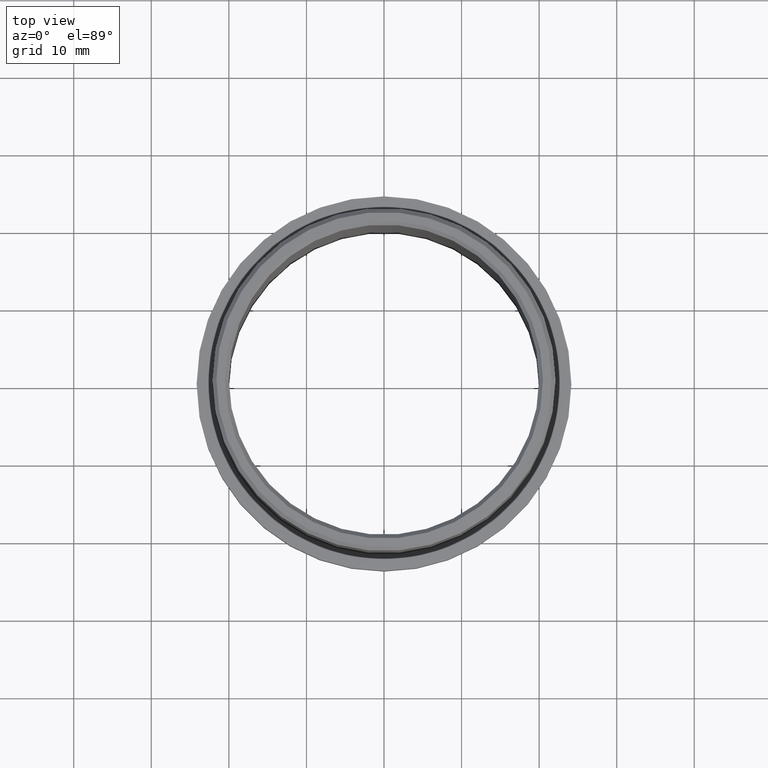
[diagram: clean part render]
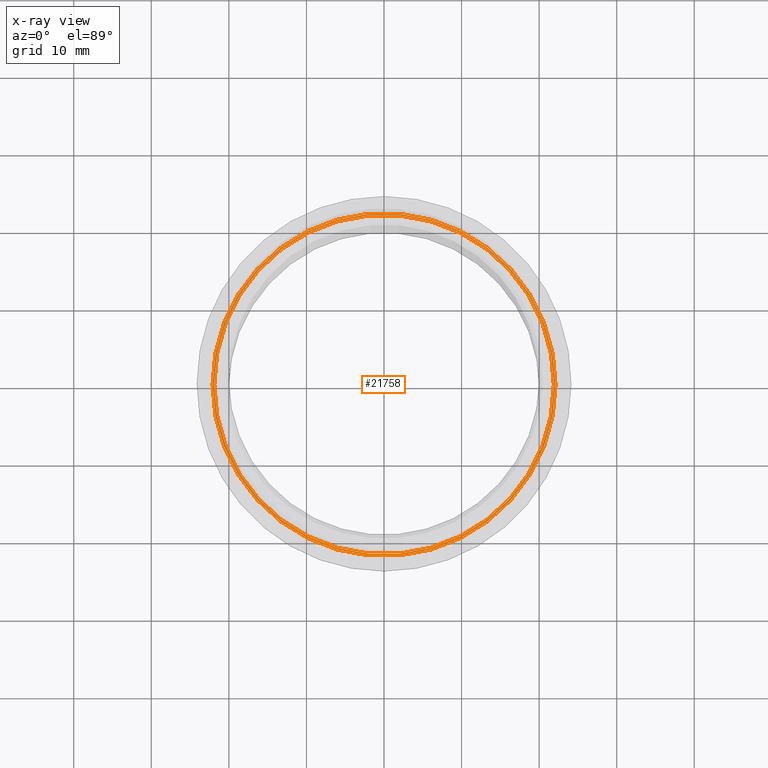
[diagram: x-ray — body ghosted, one internal face saturated and labeled with its STEP entity id]
A machine part, top view, then the same camera in x-ray: the body is ghosted and one INTERNAL B-rep face — a face not visible from any outside direction — is saturated and labeled: STEP entity #21758.
In plain terms, the highlighted planar face has unit normal (0, 0, -1).
Its self-contained STEP definition (entity closure, byte-faithful):
#1692 = EDGE_CURVE ( 'NONE', #3963, #15358, #6382, .T. ) ;
#2360 = CARTESIAN_POINT ( 'NONE',  ( 0.0000000000000000000, 0.0000000000000000000, -5.500000000000000000 ) ) ;
#2755 = CARTESIAN_POINT ( 'NONE',  ( -22.10000000000000100, 0.0000000000000000000, -5.500000000000000000 ) ) ;
#3266 = ORIENTED_EDGE ( 'NONE', *, *, #1692, .T. ) ;
#3963 = VERTEX_POINT ( 'NONE', #2755 ) ;
#5731 = CIRCLE ( 'NONE', #10152, 22.10000000000000100 ) ;
#5913 = DIRECTION ( 'NONE',  ( 0.0000000000000000000, 0.0000000000000000000, -1.000000000000000000 ) ) ;
#6000 = CIRCLE ( 'NONE', #17320, 21.89999999999999900 ) ;
#6382 = CIRCLE ( 'NONE', #13391, 22.10000000000000100 ) ;
#6507 = EDGE_CURVE ( 'NONE', #17286, #13901, #6000, .T. ) ;
#6717 = DIRECTION ( 'NONE',  ( 1.000000000000000000, 0.0000000000000000000, 0.0000000000000000000 ) ) ;
#6906 = AXIS2_PLACEMENT_3D ( 'NONE', #14603, #5913, #16212 ) ;
#6938 = EDGE_CURVE ( 'NONE', #15358, #3963, #5731, .T. ) ;
#8317 = CARTESIAN_POINT ( 'NONE',  ( 22.10000000000000100, -2.706469426115651000E-015, -5.500000000000000000 ) ) ;
#9525 = CARTESIAN_POINT ( 'NONE',  ( 0.0000000000000000000, 0.0000000000000000000, -5.500000000000000000 ) ) ;
#9604 = DIRECTION ( 'NONE',  ( 1.000000000000000000, 0.0000000000000000000, 0.0000000000000000000 ) ) ;
#10152 = AXIS2_PLACEMENT_3D ( 'NONE', #9525, #11084, #9604 ) ;
#10652 = EDGE_CURVE ( 'NONE', #13901, #17286, #12255, .T. ) ;
#10784 = FACE_BOUND ( 'NONE', #11181, .T. ) ;
#10790 = DIRECTION ( 'NONE',  ( 1.000000000000000000, 0.0000000000000000000, 0.0000000000000000000 ) ) ;
#11084 = DIRECTION ( 'NONE',  ( -0.0000000000000000000, -0.0000000000000000000, 1.000000000000000000 ) ) ;
#11181 = EDGE_LOOP ( 'NONE', ( #15506, #13782 ) ) ;
#11237 = PLANE ( 'NONE',  #6906 ) ;
#11608 = AXIS2_PLACEMENT_3D ( 'NONE', #15405, #13563, #6717 ) ;
#12003 = DIRECTION ( 'NONE',  ( 1.000000000000000000, 0.0000000000000000000, 0.0000000000000000000 ) ) ;
#12255 = CIRCLE ( 'NONE', #11608, 21.89999999999999900 ) ;
#13391 = AXIS2_PLACEMENT_3D ( 'NONE', #2360, #15572, #10790 ) ;
#13563 = DIRECTION ( 'NONE',  ( -0.0000000000000000000, -0.0000000000000000000, 1.000000000000000000 ) ) ;
#13782 = ORIENTED_EDGE ( 'NONE', *, *, #10652, .F. ) ;
#13901 = VERTEX_POINT ( 'NONE', #16816 ) ;
#14468 = FACE_OUTER_BOUND ( 'NONE', #18732, .T. ) ;
#14603 = CARTESIAN_POINT ( 'NONE',  ( 0.0000000000000000000, 0.0000000000000000000, -5.500000000000000000 ) ) ;
#15358 = VERTEX_POINT ( 'NONE', #8317 ) ;
#15405 = CARTESIAN_POINT ( 'NONE',  ( 0.0000000000000000000, 0.0000000000000000000, -5.500000000000000000 ) ) ;
#15506 = ORIENTED_EDGE ( 'NONE', *, *, #6507, .F. ) ;
#15572 = DIRECTION ( 'NONE',  ( -0.0000000000000000000, -0.0000000000000000000, 1.000000000000000000 ) ) ;
#15702 = ORIENTED_EDGE ( 'NONE', *, *, #6938, .T. ) ;
#16212 = DIRECTION ( 'NONE',  ( 1.000000000000000000, 0.0000000000000000000, 0.0000000000000000000 ) ) ;
#16816 = CARTESIAN_POINT ( 'NONE',  ( 21.89999999999999900, -2.681976490132703500E-015, -5.500000000000000000 ) ) ;
#17067 = DIRECTION ( 'NONE',  ( -0.0000000000000000000, -0.0000000000000000000, 1.000000000000000000 ) ) ;
#17286 = VERTEX_POINT ( 'NONE', #18277 ) ;
#17320 = AXIS2_PLACEMENT_3D ( 'NONE', #20518, #17067, #12003 ) ;
#18277 = CARTESIAN_POINT ( 'NONE',  ( -21.89999999999999900, 0.0000000000000000000, -5.500000000000000000 ) ) ;
#18732 = EDGE_LOOP ( 'NONE', ( #3266, #15702 ) ) ;
#20518 = CARTESIAN_POINT ( 'NONE',  ( 0.0000000000000000000, 0.0000000000000000000, -5.500000000000000000 ) ) ;
#21758 = ADVANCED_FACE ( 'NONE', ( #10784, #14468 ), #11237, .F. ) ;